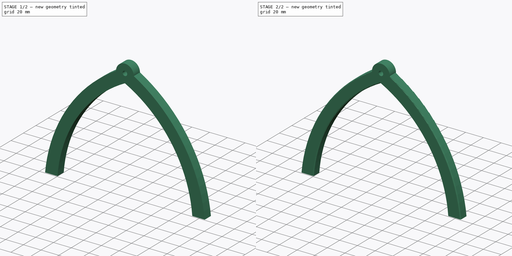
[diagram: build sequence overview — one tinted view per stage of 2, left to right]
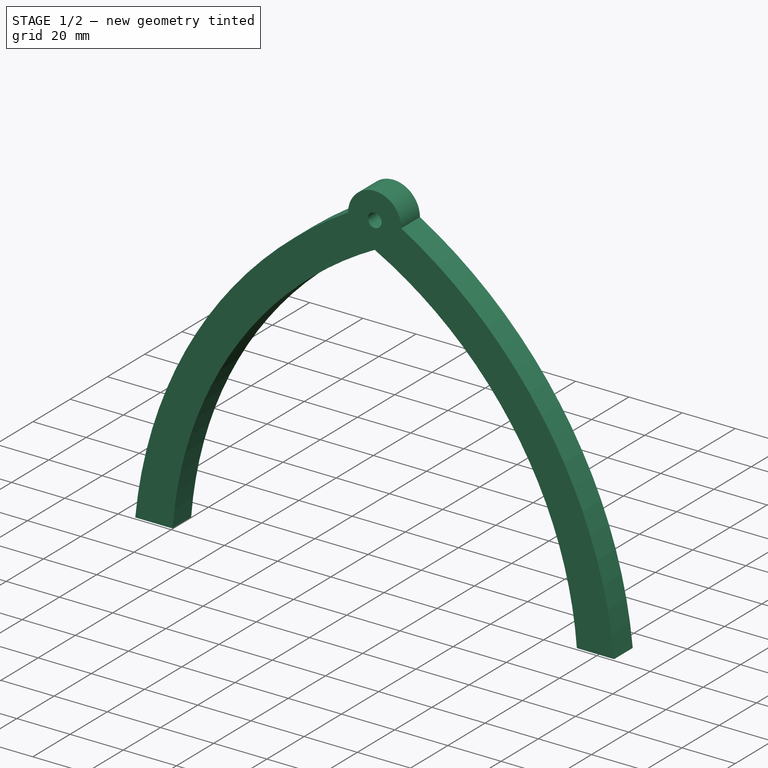
[diagram: stage 1 of 2 — iso view after this stage's code; geometry added in this stage tinted green]
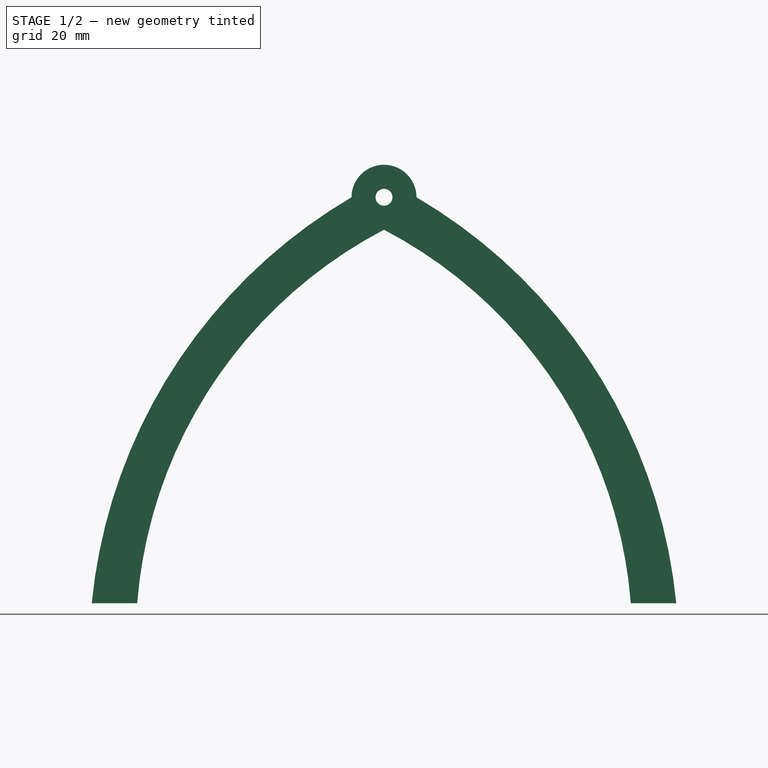
[diagram: stage 1 of 2 — front view after this stage's code; geometry added in this stage tinted green]
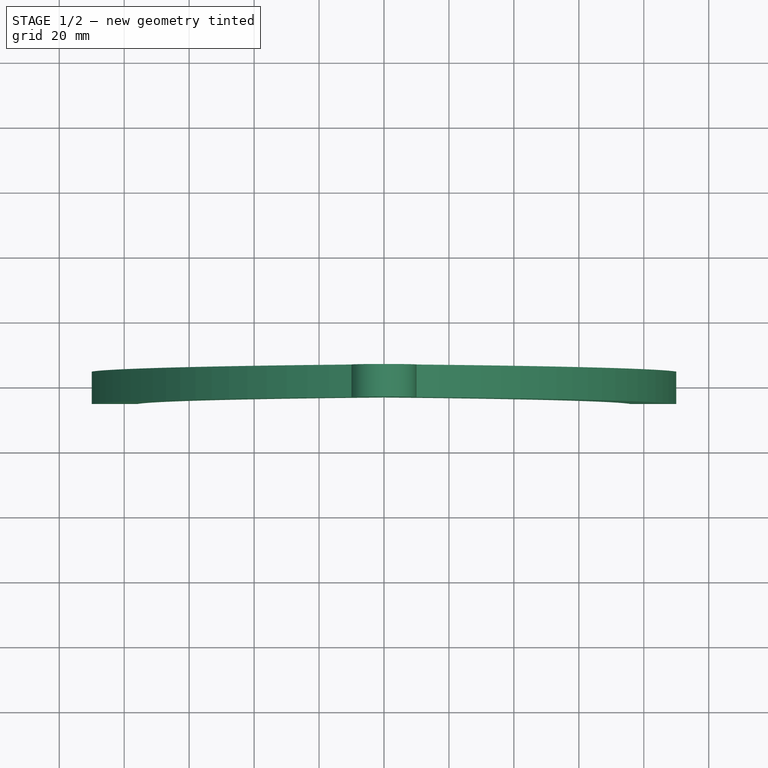
[diagram: stage 1 of 2 — top view after this stage's code; geometry added in this stage tinted green]
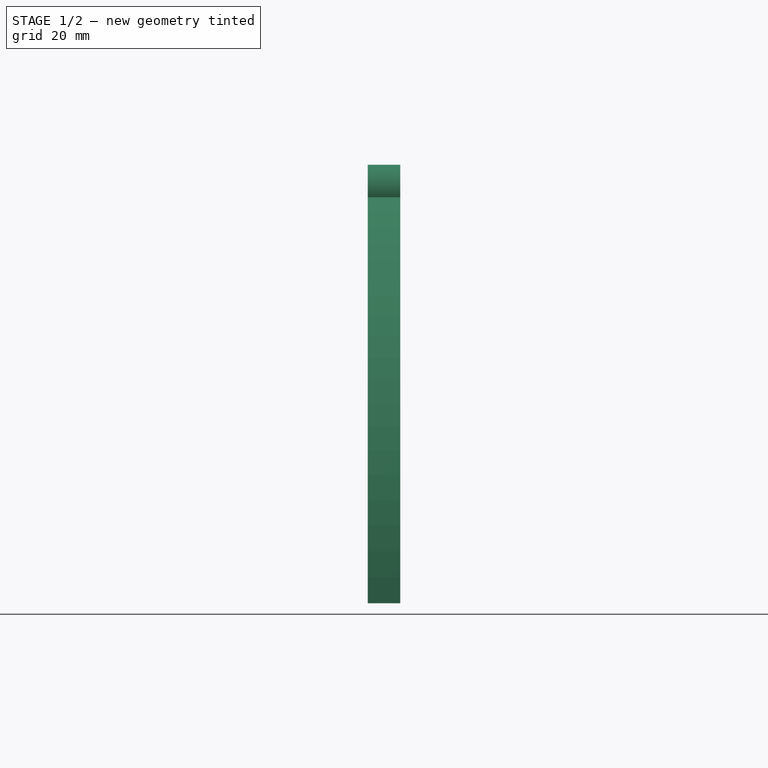
[diagram: stage 1 of 2 — right view after this stage's code; geometry added in this stage tinted green]
FCSTD DOCUMENT  (FreeCAD 0.21R33771 (Git))
Label: SFT-Mk5-Rotor Mount
License: Public Domain
LicenseURL: https://en.wikipedia.org/wiki/Public_domain
objects: PartDesign::CoordinateSystem×1, Sketcher::SketchObject×1, Part::Extrusion×1, Part::Fillet×1, App::Part×1
note: 4 computed .brp shape members not serialized (recipe doc carries the construction recipe); baked Part::Feature solids carry a one-line shape summary decoded from their .brp

FEATURE [PartDesign::CoordinateSystem] LCS_Origin
  AttacherType = Attacher::AttachEngine3D
  MapMode = 2
  Support = -> [X_Axis]
FEATURE [Sketcher::SketchObject] Sketch
  FullyConstrained = true
  MapMode = 5
  Placement = pos=(0,0,0) rot=(1,0,0;1.5708rad)
  Support = -> [XZ_Plane]
  sketch-geometry (8):
    g0: Circle CenterX=0 CenterY=0 CenterZ=0 NormalX=0 NormalY=0 NormalZ=1 AngleXU=0 Radius=2.6
    g1: ArcOfCircle CenterX=0 CenterY=0 CenterZ=0 NormalX=0 NormalY=0 NormalZ=1 AngleXU=0 Radius=10 StartAngle=0 EndAngle=3.14159
    g2: LineSegment StartX=76 StartY=-125 StartZ=0 EndX=90 EndY=-125 EndZ=0
    g3: LineSegment StartX=-76 StartY=-125 StartZ=0 EndX=-90 EndY=-125 EndZ=0
    g4: ArcOfCircle CenterX=-72.7117 CenterY=-141.036 CenterZ=0 NormalX=0 NormalY=0 NormalZ=1 AngleXU=0 Radius=163.5 StartAngle=0.0982345 EndAngle=1.04039
    g5: ArcOfCircle CenterX=72.7117 CenterY=-141.036 CenterZ=0 NormalX=0 NormalY=0 NormalZ=1 AngleXU=0 Radius=163.5 StartAngle=2.1012 EndAngle=3.04336
    g6: ArcOfCircle CenterX=-65.9396 CenterY=-136.19 CenterZ=0 NormalX=0 NormalY=0 NormalZ=1 AngleXU=0 Radius=142.38 StartAngle=0.0786771 EndAngle=1.08928
    g7: ArcOfCircle CenterX=65.9396 CenterY=-136.19 CenterZ=0 NormalX=0 NormalY=0 NormalZ=1 AngleXU=0 Radius=142.38 StartAngle=2.05231 EndAngle=3.06292
  constraints (25):
    c: Coincident(g0,g-1)
    c: Radius(g0) = 2.6
    c: Coincident(g1,g0)
    c: Radius(g1) = 10
    c: PointOnObject(g1,g-1)
    c: PointOnObject(g1,g-1)
    c: Coincident(g4,g1)
    c: Coincident(g5,g1)
    c: Coincident(g5,g3)
    c: Coincident(g4,g2)
    c: Symmetric(g3,g2,g-2)
    c: Symmetric(g2,g3,g-2)
    c: PointOnObject(g6,g-2)
    c: Coincident(g7,g6)
    c: Coincident(g3,g7)
    c: Coincident(g2,g6)
    c: DistanceY(g6) = -10
    c: DistanceY(g3) = -125
    c: DistanceX(g2,g2) = 14
    c: Horizontal(g3)
    c: DistanceX(g3) = -90
    c: Equal(g4,g5)
    c: Equal(g7,g6)
    c: Radius(g7) = 142.38
    c: Radius(g5) = 163.5
FEATURE [Part::Extrusion] Extrude
  Base = -> Sketch
  Dir = (0,-1,2e-16)
  DirMode = 2
  FaceMakerClass = Part::FaceMakerBullseye
  LengthFwd = 10
  LengthRev = 0
  Solid = true
  Symmetric = true
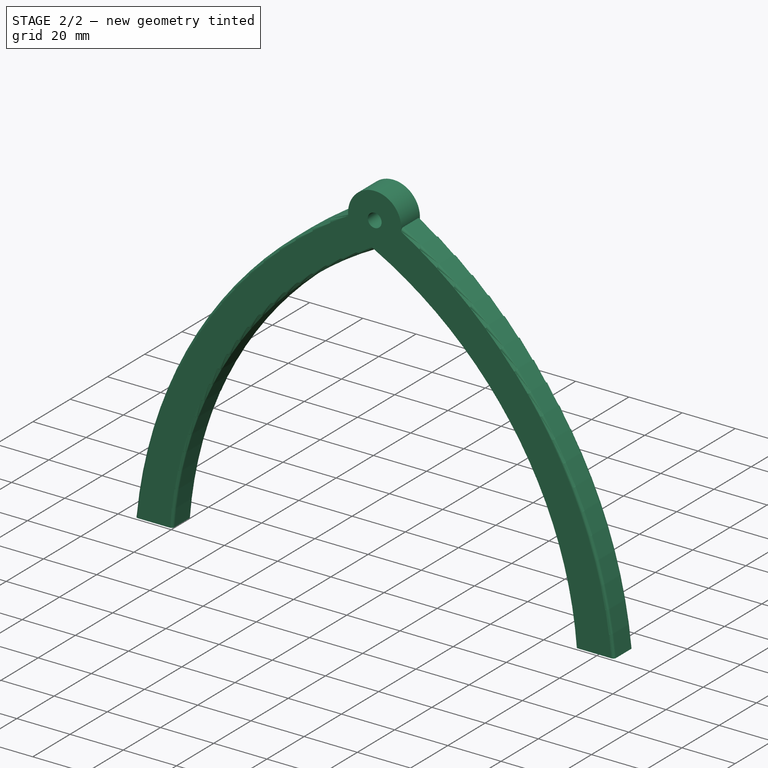
[diagram: stage 2 of 2 — iso view after this stage's code; geometry added in this stage tinted green]
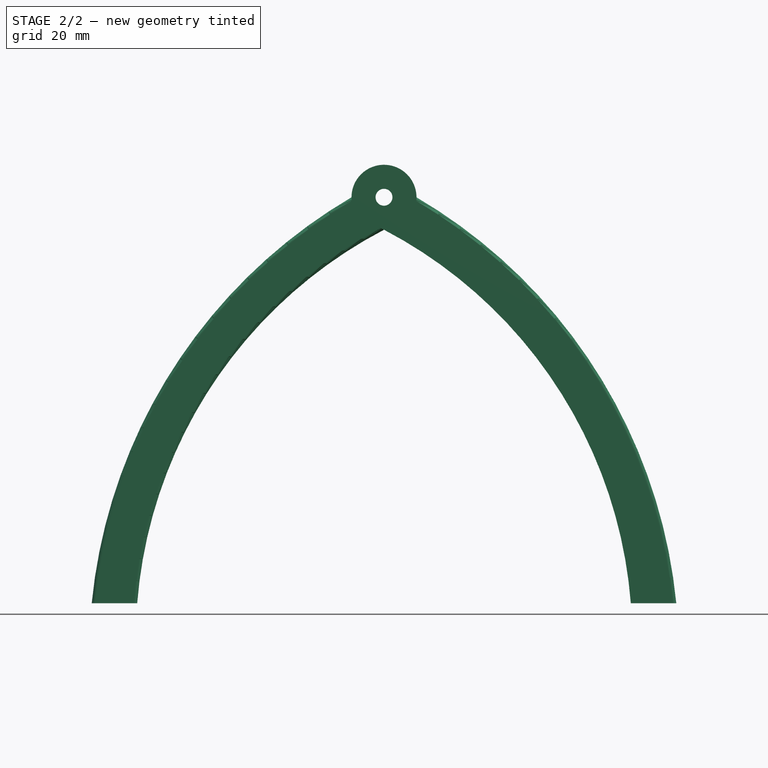
[diagram: stage 2 of 2 — front view after this stage's code; geometry added in this stage tinted green]
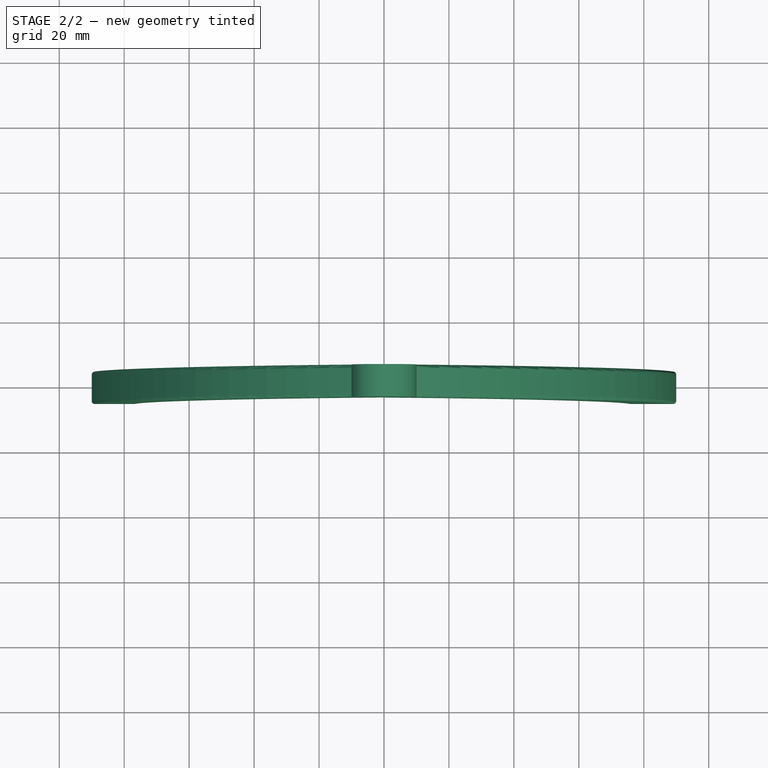
[diagram: stage 2 of 2 — top view after this stage's code; geometry added in this stage tinted green]
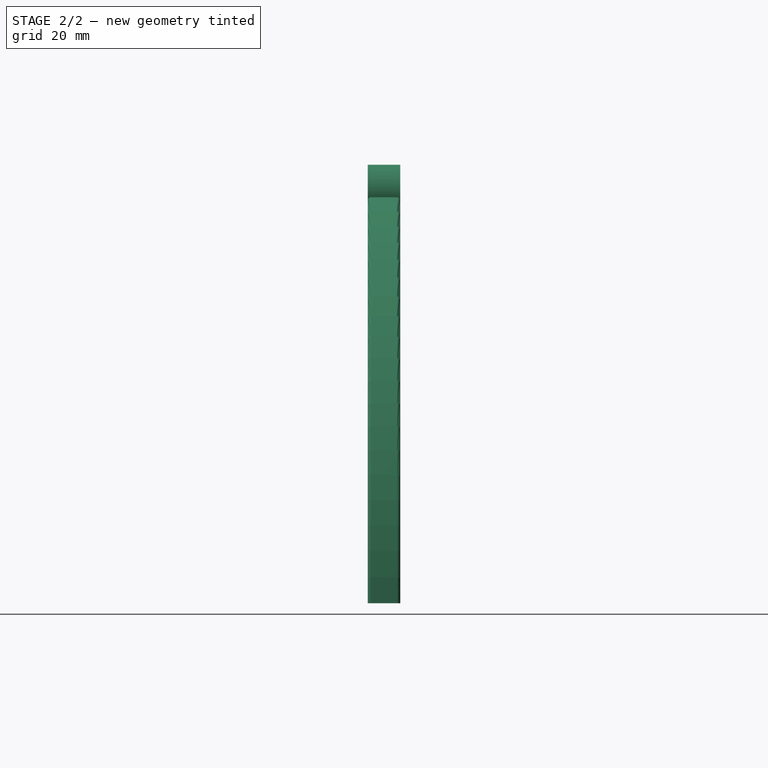
[diagram: stage 2 of 2 — right view after this stage's code; geometry added in this stage tinted green]
FEATURE [Part::Fillet] Fillet
  Base = -> Extrude
  Edges = 7 edges r=1: [Edge6,Edge7,Edge12,Edge13,Edge18,Edge19,Edge20]
FEATURE [App::Part] Rotor_Mount  label="Rotor Mount"
  Group = -> [LCS_Origin,Sketch,Extrude,Fillet]
  Origin = -> Origin
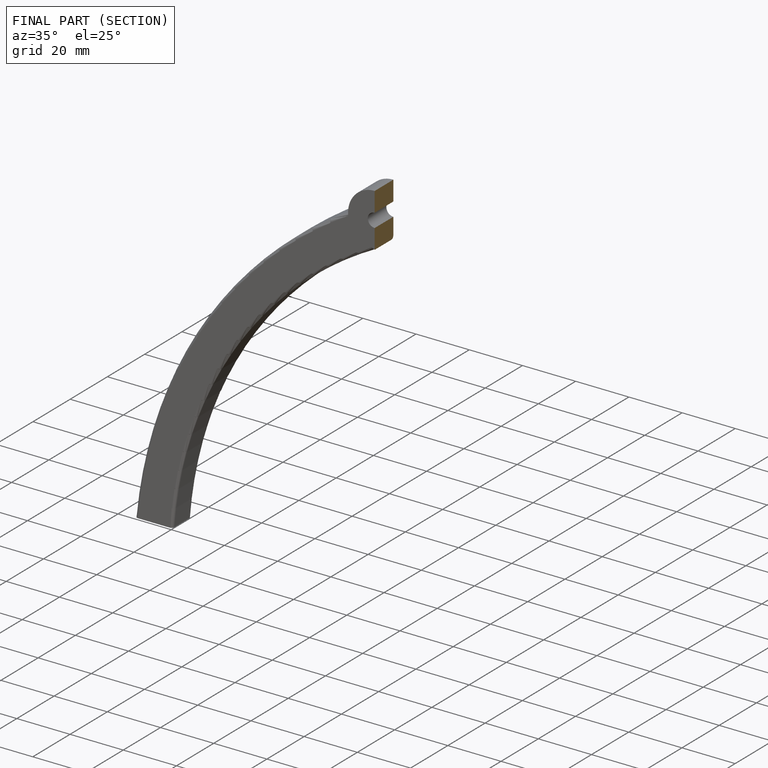
[diagram: finished part — half-section view (interior)]
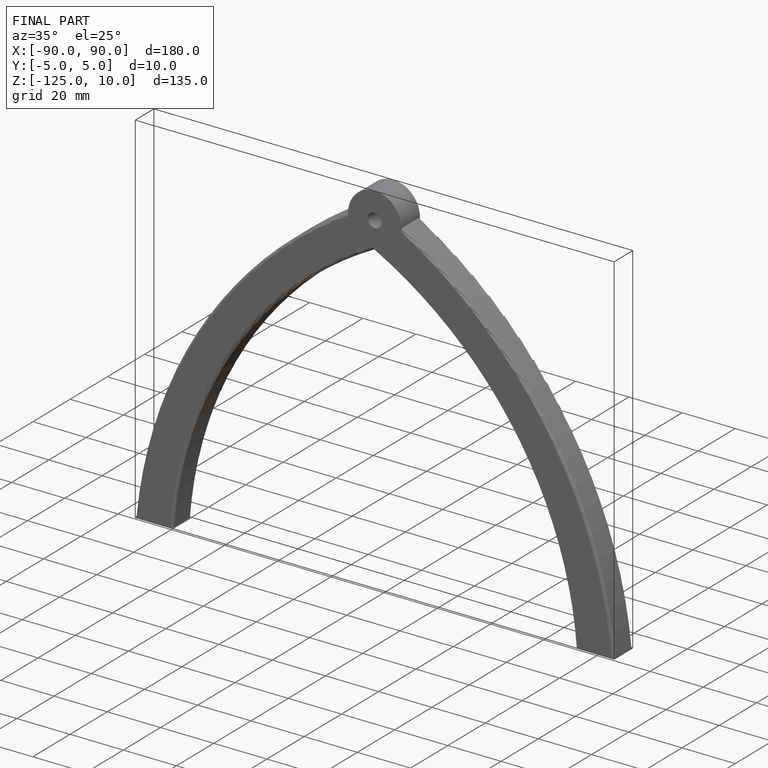
[diagram: finished part — iso view with bounding-box wireframe]
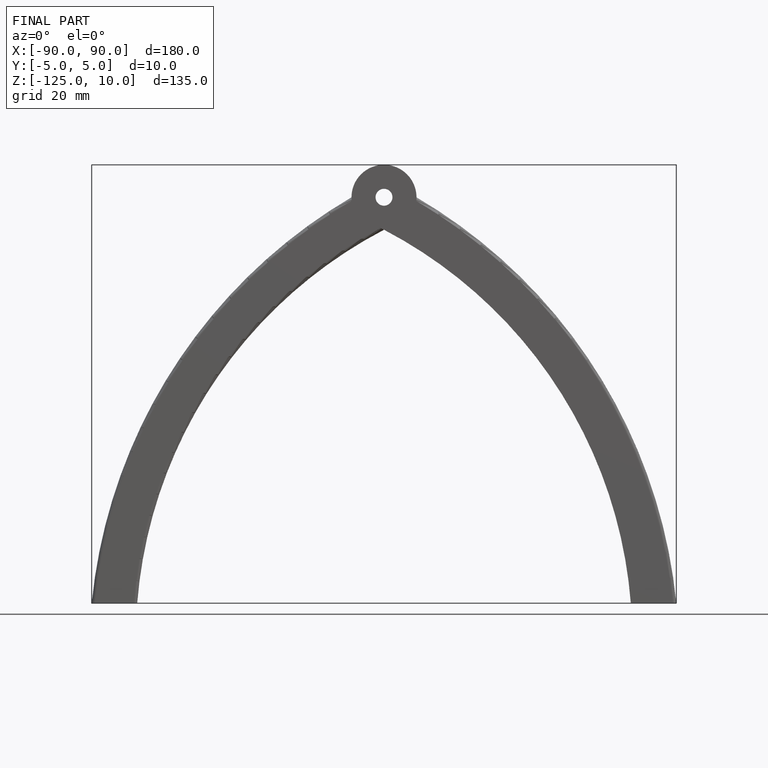
[diagram: finished part — front view with bounding-box wireframe]
